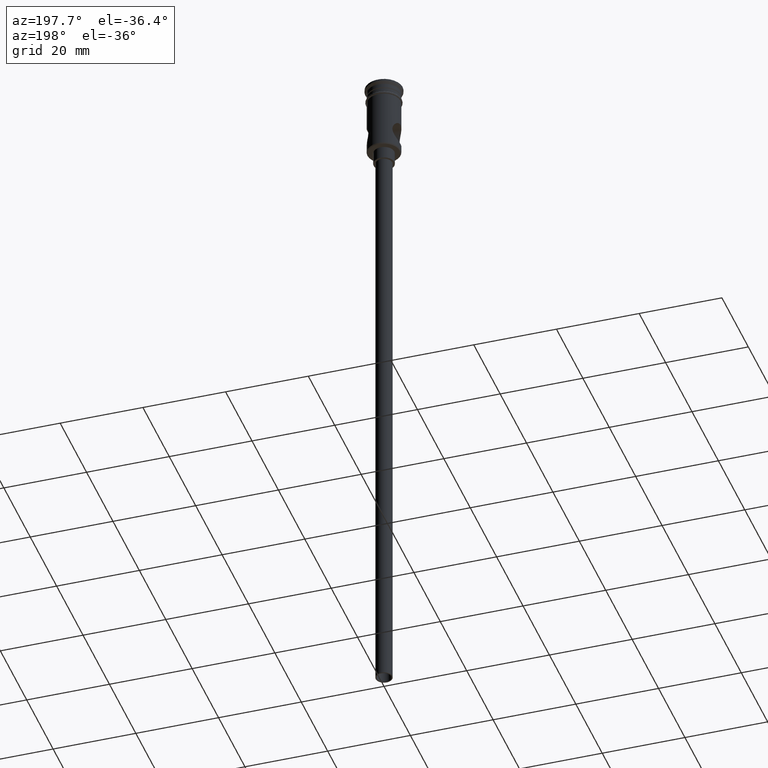
[diagram: clean part render]
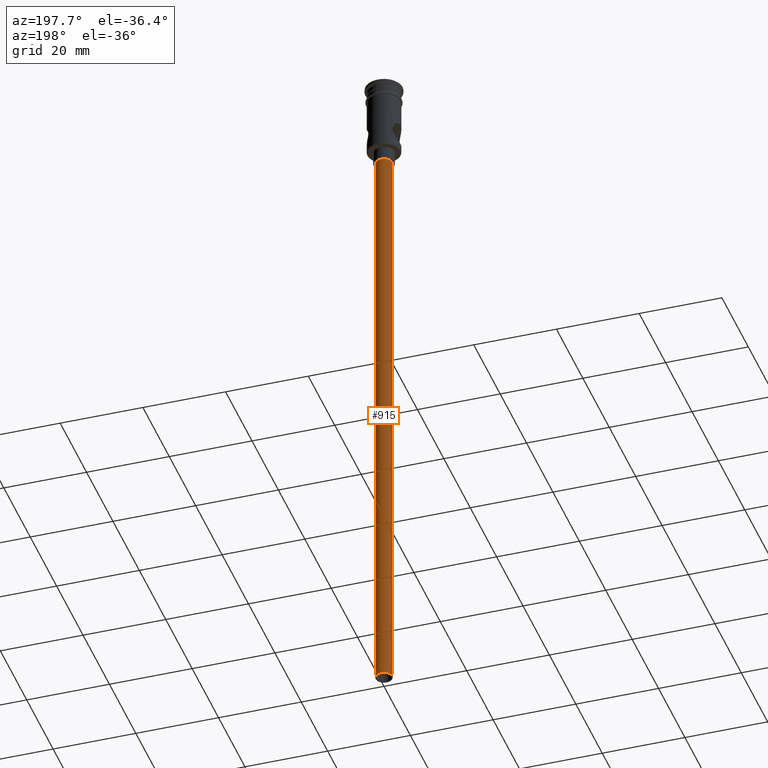
[diagram: same view with one face highlighted and labeled with its STEP entity id]
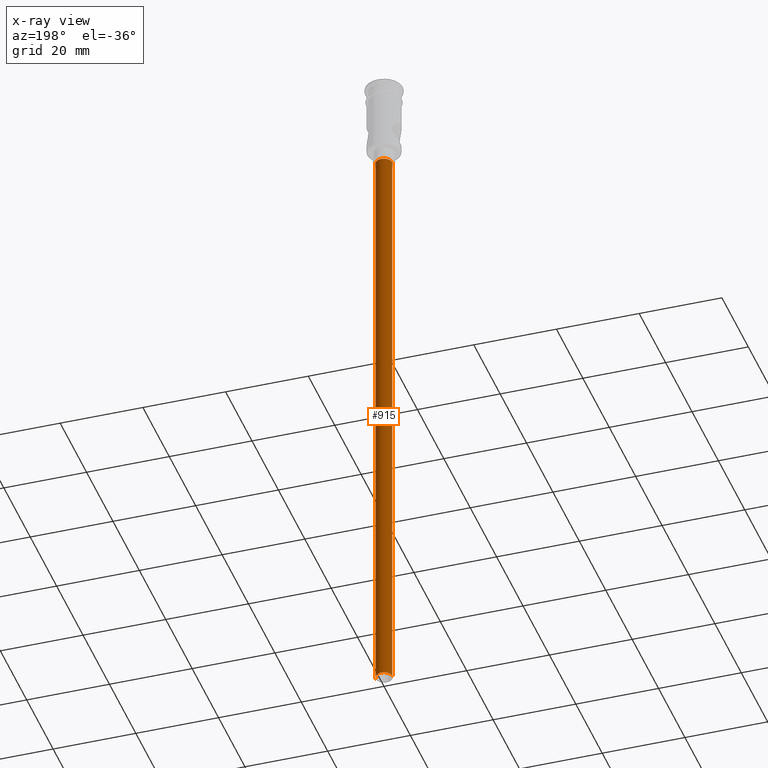
[diagram: x-ray of the same camera — body ghosted, the highlighted face saturated]
A machine part, auxiliary view. The second image highlights one B-rep face of the part: STEP entity #915.
The next image is the same camera in x-ray: the body ghosted, the highlighted face saturated — about 0% of this face is hidden behind the body in this view.
In plain terms, the highlighted cylindrical surface (edge-blend (fillet) strip) has radius 2 mm, axis along (-0, -0, 1).
Its self-contained STEP definition (entity closure, byte-faithful):
#20 = EDGE_CURVE ( 'NONE', #536, #399, #225, .T. ) ;
#29 = AXIS2_PLACEMENT_3D ( 'NONE', #658, #460, #340 ) ;
#56 = ORIENTED_EDGE ( 'NONE', *, *, #20, .F. ) ;
#106 = DIRECTION ( 'NONE',  ( -1.000000000000000000, 0.000000000000000000, 0.000000000000000000 ) ) ;
#147 = CIRCLE ( 'NONE', #29, 2.000000000000000000 ) ;
#204 = CARTESIAN_POINT ( 'NONE',  ( 0.000000000000000000, 0.000000000000000000, -20.99999999999999645 ) ) ;
#213 = ORIENTED_EDGE ( 'NONE', *, *, #376, .T. ) ;
#221 = VERTEX_POINT ( 'NONE', #1268 ) ;
#225 = LINE ( 'NONE', #1243, #504 ) ;
#340 = DIRECTION ( 'NONE',  ( -1.000000000000000000, 0.000000000000000000, 0.000000000000000000 ) ) ;
#376 = EDGE_CURVE ( 'NONE', #221, #829, #751, .T. ) ;
#399 = VERTEX_POINT ( 'NONE', #1398 ) ;
#421 = VECTOR ( 'NONE', #973, 1000.000000000000000 ) ;
#460 = DIRECTION ( 'NONE',  ( 0.000000000000000000, 0.000000000000000000, -1.000000000000000000 ) ) ;
#504 = VECTOR ( 'NONE', #1319, 1000.000000000000000 ) ;
#536 = VERTEX_POINT ( 'NONE', #543 ) ;
#537 = DIRECTION ( 'NONE',  ( -0.000000000000000000, -0.000000000000000000, 1.000000000000000000 ) ) ;
#543 = CARTESIAN_POINT ( 'NONE',  ( 2.000000000000000000, 0.000000000000000000, -167.9999999999999716 ) ) ;
#566 = ORIENTED_EDGE ( 'NONE', *, *, #1440, .T. ) ;
#658 = CARTESIAN_POINT ( 'NONE',  ( 0.000000000000000000, 0.000000000000000000, -167.9999999999999716 ) ) ;
#730 = CARTESIAN_POINT ( 'NONE',  ( -2.000000000000000000, 2.449293598294706414E-16, -167.9999999999999716 ) ) ;
#751 = LINE ( 'NONE', #730, #421 ) ;
#759 = EDGE_LOOP ( 'NONE', ( #1078, #213, #566, #56 ) ) ;
#768 = CIRCLE ( 'NONE', #1101, 2.000000000000000000 ) ;
#829 = VERTEX_POINT ( 'NONE', #1225 ) ;
#843 = DIRECTION ( 'NONE',  ( 0.000000000000000000, 0.000000000000000000, -1.000000000000000000 ) ) ;
#915 = ADVANCED_FACE ( 'NONE', ( #1005 ), #987, .T. ) ;
#973 = DIRECTION ( 'NONE',  ( -0.000000000000000000, -0.000000000000000000, 1.000000000000000000 ) ) ;
#987 = CYLINDRICAL_SURFACE ( 'NONE', #1211, 2.000000000000000000 ) ;
#1005 = FACE_OUTER_BOUND ( 'NONE', #759, .T. ) ;
#1078 = ORIENTED_EDGE ( 'NONE', *, *, #1198, .F. ) ;
#1101 = AXIS2_PLACEMENT_3D ( 'NONE', #204, #843, #106 ) ;
#1112 = DIRECTION ( 'NONE',  ( 1.000000000000000000, 0.000000000000000000, 0.000000000000000000 ) ) ;
#1198 = EDGE_CURVE ( 'NONE', #221, #536, #147, .T. ) ;
#1211 = AXIS2_PLACEMENT_3D ( 'NONE', #1335, #537, #1112 ) ;
#1225 = CARTESIAN_POINT ( 'NONE',  ( -2.000000000000000000, 2.449293598294706414E-16, -20.99999999999999645 ) ) ;
#1243 = CARTESIAN_POINT ( 'NONE',  ( 2.000000000000000000, 0.000000000000000000, -167.9999999999999716 ) ) ;
#1268 = CARTESIAN_POINT ( 'NONE',  ( -2.000000000000000000, 2.449293598294706414E-16, -167.9999999999999716 ) ) ;
#1319 = DIRECTION ( 'NONE',  ( -0.000000000000000000, -0.000000000000000000, 1.000000000000000000 ) ) ;
#1335 = CARTESIAN_POINT ( 'NONE',  ( 0.000000000000000000, 0.000000000000000000, -167.9999999999999716 ) ) ;
#1398 = CARTESIAN_POINT ( 'NONE',  ( 2.000000000000000000, 0.000000000000000000, -20.99999999999999645 ) ) ;
#1440 = EDGE_CURVE ( 'NONE', #829, #399, #768, .T. ) ;